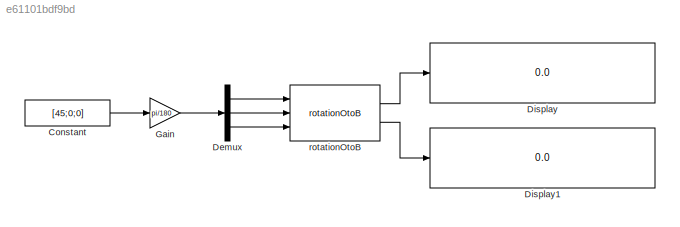
MODEL slx_e61101bdf9bd
KIND model
CONFIG AbsTol = auto
CONFIG EnableMultiTasking = off
CONFIG FixedStep = auto
CONFIG MaxStep = auto
CONFIG MinStep = auto
CONFIG RelTol = 1e-3
CONFIG SampleTimeConstraint = Unconstrained
CONFIG Solver = VariableStepAuto
CONFIG SolverName = VariableStepAuto
CONFIG StartTime = 0.0
CONFIG StopTime = 0
BLOCK [Constant] Constant
  Value = [45;0;0]
BLOCK [Demux] Demux
  Outputs = 3
  Ports = [1, 3]
BLOCK [Display] Display
  Decimation = 1
  Ports = [1]
BLOCK [Display] Display1
  Decimation = 1
  Ports = [1]
BLOCK [Gain] Gain
  Gain = pi/180
BLOCK [Reference] rotationOtoB  REF=makeOcB_cl/rotationOtoB
  Ports = [3, 2]
  SourceBlock = makeOcB_cl/rotationOtoB
  SourceType = SubSystem
LINE Constant:1 -> Gain:1
LINE Demux:1 -> rotationOtoB:1
LINE Demux:2 -> rotationOtoB:2
LINE Demux:3 -> rotationOtoB:3
LINE Gain:1 -> Demux:1
LINE rotationOtoB:1 -> Display:1
LINE rotationOtoB:2 -> Display1:1
